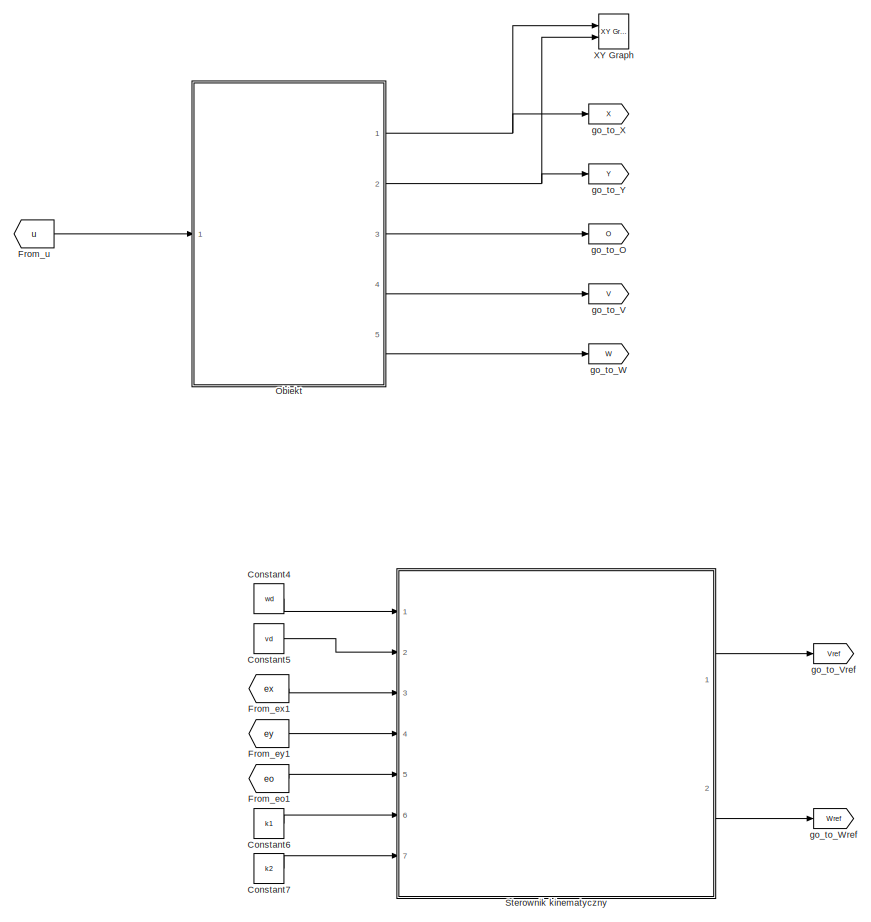
[diagram: root canvas - part 1/3, middle left region]
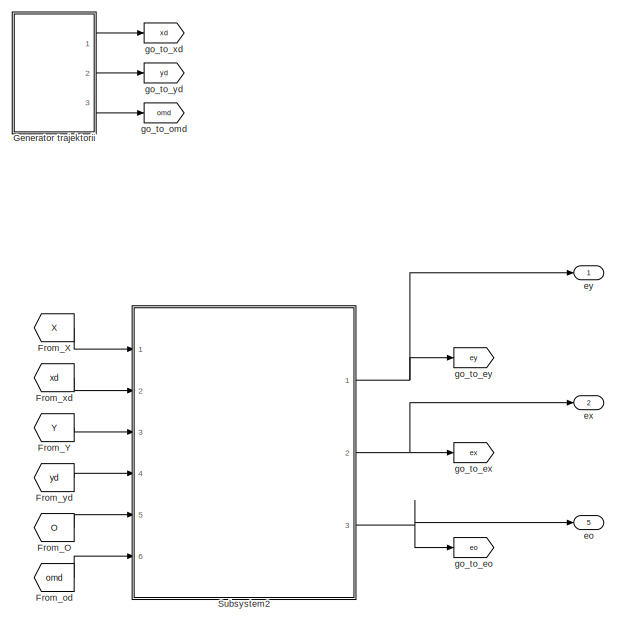
[diagram: root canvas - part 2/3, middle right region]
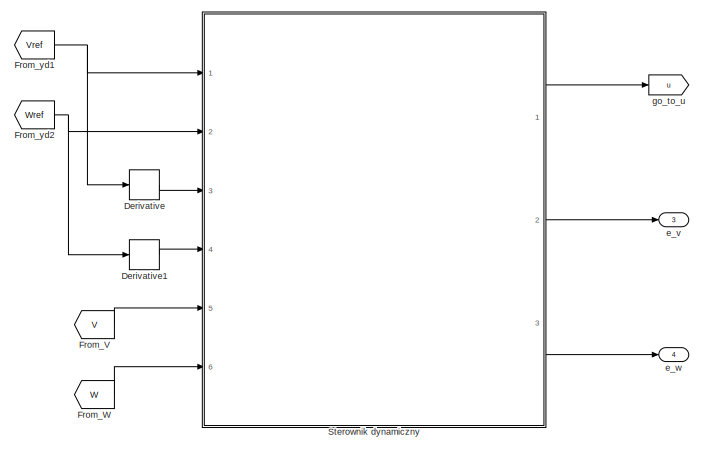
[diagram: root canvas - part 3/3, bottom center region]
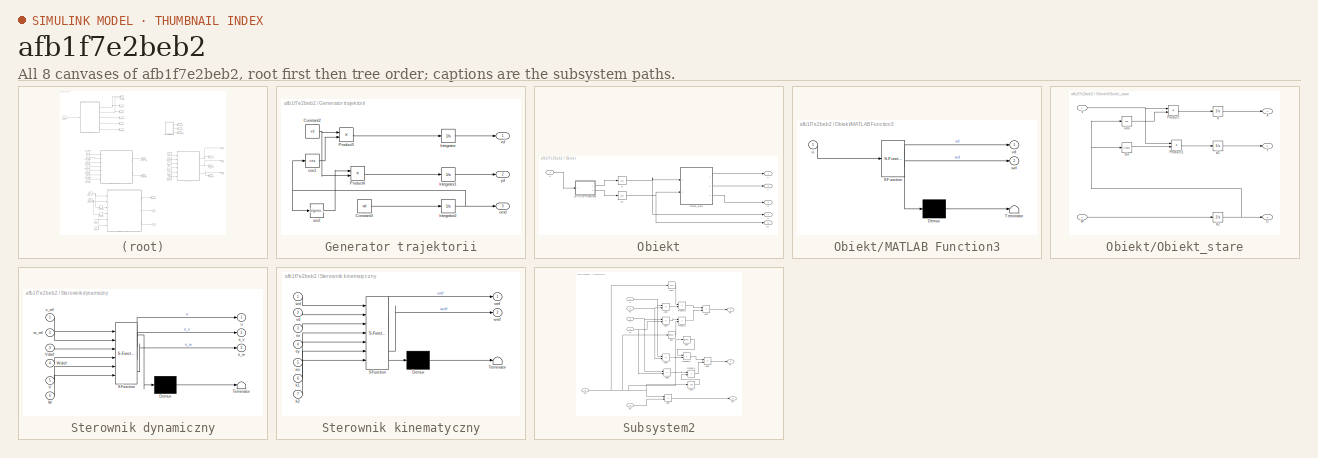
[diagram: thumbnail index - all 8 canvases of the model, root first then tree order]
MODEL slx_afb1f7e2beb2
KIND model
CONFIG AbsTol = auto
CONFIG EnableMultiTasking = off
CONFIG FixedStep = auto
CONFIG MaxStep = auto
CONFIG MinStep = auto
CONFIG RelTol = 1e-2
CONFIG SampleTimeConstraint = Unconstrained
CONFIG Solver = ode113
CONFIG SolverName = ode113
CONFIG StartTime = 0.0
CONFIG StopTime = 10
BLOCK [Constant] Constant4
  Value = wd
BLOCK [Constant] Constant5
  Value = vd
BLOCK [Constant] Constant6
  Value = k1
BLOCK [Constant] Constant7
  Value = k2
BLOCK [Derivative] Derivative
BLOCK [Derivative] Derivative1
BLOCK [From] From_O
  GotoTag = O
BLOCK [From] From_V
  GotoTag = V
BLOCK [From] From_W
  GotoTag = W
BLOCK [From] From_X
  GotoTag = X
BLOCK [From] From_Y
  GotoTag = Y
BLOCK [From] From_eo1
  GotoTag = eo
BLOCK [From] From_ex1
  GotoTag = ex
BLOCK [From] From_ey1
  GotoTag = ey
BLOCK [From] From_od
  GotoTag = omd
BLOCK [From] From_u
  GotoTag = u
BLOCK [From] From_xd
  GotoTag = xd
BLOCK [From] From_yd
  GotoTag = yd
BLOCK [From] From_yd1
  GotoTag = Vref
BLOCK [From] From_yd2
  GotoTag = Wref
BLOCK [SubSystem] Generator trajektorii
  Ports = [0, 3]
  RequestExecContextInheritance = off
BLOCK [Constant] Generator trajektorii/Constant2
  Value = vd
BLOCK [Constant] Generator trajektorii/Constant3
  Value = wd
BLOCK [Integrator] Generator trajektorii/Integrator
  Ports = [1, 1]
BLOCK [Integrator] Generator trajektorii/Integrator1
  InitialCondition = -R
  Ports = [1, 1]
BLOCK [Integrator] Generator trajektorii/Integrator2
  Ports = [1, 1]
BLOCK [Product] Generator trajektorii/Product3
  Ports = [2, 1]
BLOCK [Product] Generator trajektorii/Product4
  Ports = [2, 1]
BLOCK [Trigonometry] Generator trajektorii/cos1
  Operator = cos
  Ports = [1, 1]
BLOCK [Outport] Generator trajektorii/omd
  Port = 3
BLOCK [Trigonometry] Generator trajektorii/sin2
  Ports = [1, 1]
BLOCK [Outport] Generator trajektorii/xd
BLOCK [Outport] Generator trajektorii/yd
  Port = 2
BLOCK [SubSystem] Obiekt
  Ports = [1, 5]
  RequestExecContextInheritance = off
BLOCK [SubSystem] Obiekt/MATLAB Function3
  ErrorFcn = Stateflow.Translate.translate
  PermitHierarchicalResolution = ExplicitOnly
  Ports = [1, 2]
  RequestExecContextInheritance = off
  SFBlockType = MATLAB Function
  TreatAsAtomicUnit = on
BLOCK [Demux] Obiekt/MATLAB Function3/ Demux 
  Outputs = 1
  Ports = [1, 1]
BLOCK [S-Function] Obiekt/MATLAB Function3/ SFunction 
  EnableBusSupport = on
  FunctionName = sf_sfun
  Parameters = B,M_1
  PortCounts = [1 3]
  Ports = [1, 3]
  SFcnIsStateOwnerBlock = off
  SFunctionDeploymentMode = off
  Tag = Stateflow S-Function 4
BLOCK [Terminator] Obiekt/MATLAB Function3/ Terminator 
BLOCK [Inport] Obiekt/MATLAB Function3/u
BLOCK [Outport] Obiekt/MATLAB Function3/vd
BLOCK [Outport] Obiekt/MATLAB Function3/wd
  Port = 2
BLOCK [Outport] Obiekt/O
  Port = 3
BLOCK [SubSystem] Obiekt/Obiekt_stare
  Ports = [2, 3]
  RequestExecContextInheritance = off
BLOCK [Trigonometry] Obiekt/Obiekt_stare/Cos
  Operator = cos
  Ports = [1, 1]
BLOCK [Outport] Obiekt/Obiekt_stare/O
  Port = 3
BLOCK [Product] Obiekt/Obiekt_stare/Product
  Ports = [2, 1]
BLOCK [Product] Obiekt/Obiekt_stare/Product1
  Ports = [2, 1]
BLOCK [Trigonometry] Obiekt/Obiekt_stare/Sin
  Ports = [1, 1]
BLOCK [Inport] Obiekt/Obiekt_stare/V
BLOCK [Inport] Obiekt/Obiekt_stare/W
  Port = 2
BLOCK [Outport] Obiekt/Obiekt_stare/X
BLOCK [Outport] Obiekt/Obiekt_stare/Y
  Port = 2
BLOCK [Integrator] Obiekt/Obiekt_stare/d
  InitialCondition = R
  Ports = [1, 1]
BLOCK [Integrator] Obiekt/Obiekt_stare/d1
  InitialCondition = R
  Ports = [1, 1]
BLOCK [Integrator] Obiekt/Obiekt_stare/d2
  InitialCondition = 1
  Ports = [1, 1]
BLOCK [Outport] Obiekt/V
  Port = 4
BLOCK [Outport] Obiekt/W
  Port = 5
BLOCK [Outport] Obiekt/X
BLOCK [Outport] Obiekt/Y
  Port = 2
BLOCK [Integrator] Obiekt/d
  Ports = [1, 1]
BLOCK [Integrator] Obiekt/d1
  Ports = [1, 1]
BLOCK [Inport] Obiekt/u
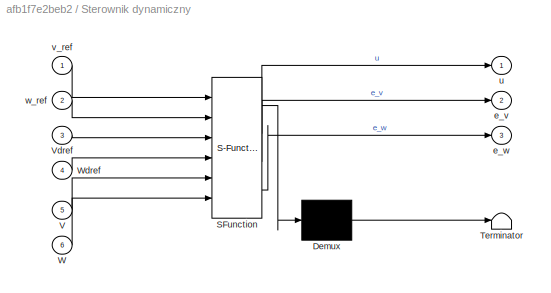
BLOCK [SubSystem] Sterownik dynamiczny
  ErrorFcn = Stateflow.Translate.translate
  PermitHierarchicalResolution = ExplicitOnly
  Ports = [6, 3]
  RequestExecContextInheritance = off
  SFBlockType = MATLAB Function
  TreatAsAtomicUnit = on
BLOCK [Demux] Sterownik dynamiczny/ Demux 
  Outputs = 1
  Ports = [1, 1]
BLOCK [S-Function] Sterownik dynamiczny/ SFunction 
  EnableBusSupport = on
  FunctionName = sf_sfun
  Parameters = B_1,M,kd
  PortCounts = [6 4]
  Ports = [6, 4]
  SFcnIsStateOwnerBlock = off
  SFunctionDeploymentMode = off
  Tag = Stateflow S-Function 3
BLOCK [Terminator] Sterownik dynamiczny/ Terminator 
BLOCK [Inport] Sterownik dynamiczny/V
  Port = 5
BLOCK [Inport] Sterownik dynamiczny/Vdref
  Port = 3
BLOCK [Inport] Sterownik dynamiczny/W
  Port = 6
BLOCK [Inport] Sterownik dynamiczny/Wdref
  Port = 4
BLOCK [Outport] Sterownik dynamiczny/e_v
  Port = 2
BLOCK [Outport] Sterownik dynamiczny/e_w
  Port = 3
BLOCK [Outport] Sterownik dynamiczny/u
BLOCK [Inport] Sterownik dynamiczny/v_ref
BLOCK [Inport] Sterownik dynamiczny/w_ref
  Port = 2
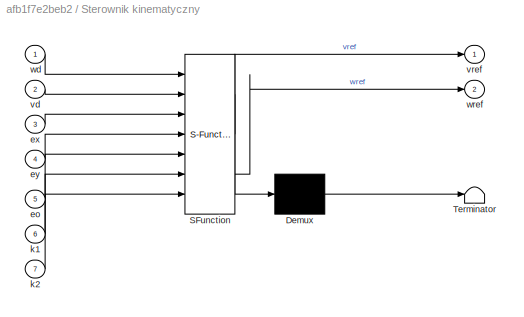
BLOCK [SubSystem] Sterownik kinematyczny
  ErrorFcn = Stateflow.Translate.translate
  PermitHierarchicalResolution = ExplicitOnly
  Ports = [7, 2]
  RequestExecContextInheritance = off
  SFBlockType = MATLAB Function
  TreatAsAtomicUnit = on
BLOCK [Demux] Sterownik kinematyczny/ Demux 
  Outputs = 1
  Ports = [1, 1]
BLOCK [S-Function] Sterownik kinematyczny/ SFunction 
  EnableBusSupport = on
  FunctionName = sf_sfun
  PortCounts = [7 3]
  Ports = [7, 3]
  SFcnIsStateOwnerBlock = off
  SFunctionDeploymentMode = off
  Tag = Stateflow S-Function 2
BLOCK [Terminator] Sterownik kinematyczny/ Terminator 
BLOCK [Inport] Sterownik kinematyczny/eo
  Port = 5
BLOCK [Inport] Sterownik kinematyczny/ex
  Port = 3
BLOCK [Inport] Sterownik kinematyczny/ey
  Port = 4
BLOCK [Inport] Sterownik kinematyczny/k1
  Port = 6
BLOCK [Inport] Sterownik kinematyczny/k2
  Port = 7
BLOCK [Inport] Sterownik kinematyczny/vd
  Port = 2
BLOCK [Outport] Sterownik kinematyczny/vref
BLOCK [Inport] Sterownik kinematyczny/wd
BLOCK [Outport] Sterownik kinematyczny/wref
  Port = 2
BLOCK [SubSystem] Subsystem2
  Ports = [6, 3]
  RequestExecContextInheritance = off
BLOCK [Sum] Subsystem2/Add1
  IconShape = rectangular
  Inputs = +-
  Ports = [2, 1]
BLOCK [Sum] Subsystem2/Add2
  IconShape = rectangular
  Ports = [2, 1]
BLOCK [Sum] Subsystem2/Add3
  IconShape = rectangular
  Inputs = +-
  Ports = [2, 1]
BLOCK [Sum] Subsystem2/Add4
  IconShape = rectangular
  Inputs = +-
  Ports = [2, 1]
BLOCK [Sum] Subsystem2/Add5
  IconShape = rectangular
  Inputs = -+
  Ports = [2, 1]
BLOCK [Sum] Subsystem2/Add6
  IconShape = rectangular
  Inputs = +-
  Ports = [2, 1]
BLOCK [Sum] Subsystem2/Add7
  IconShape = rectangular
  Inputs = +-
  Ports = [2, 1]
BLOCK [Inport] Subsystem2/O
  Port = 5
BLOCK [Product] Subsystem2/Product1
  Ports = [2, 1]
BLOCK [Product] Subsystem2/Product2
  Ports = [2, 1]
BLOCK [Product] Subsystem2/Product3
  Ports = [2, 1]
BLOCK [Product] Subsystem2/Product4
  Ports = [2, 1]
BLOCK [Inport] Subsystem2/X
BLOCK [Inport] Subsystem2/Y
  Port = 3
BLOCK [Trigonometry] Subsystem2/cos2
  Operator = cos
  Ports = [1, 1]
BLOCK [Trigonometry] Subsystem2/cos3
  Operator = cos
  Ports = [1, 1]
BLOCK [Outport] Subsystem2/eo
  Port = 3
BLOCK [Outport] Subsystem2/ex
  Port = 2
BLOCK [Outport] Subsystem2/ey
BLOCK [Inport] Subsystem2/od
  Port = 6
BLOCK [Trigonometry] Subsystem2/sin2
  Ports = [1, 1]
BLOCK [Trigonometry] Subsystem2/sin3
  Ports = [1, 1]
BLOCK [Inport] Subsystem2/xd
  Port = 2
BLOCK [Inport] Subsystem2/yd
  Port = 4
BLOCK [Reference] XY Graph  REF=simulink/Sinks/XY Graph
  Ports = [2]
  SourceBlock = simulink/Sinks/XY Graph
  SourceProductBaseCode = SL
  SourceType = XY scope.
BLOCK [Outport] e_v
  Port = 3
BLOCK [Outport] e_w
  Port = 4
BLOCK [Outport] eo
  Port = 5
BLOCK [Outport] ex
  Port = 2
BLOCK [Outport] ey
BLOCK [Goto] go_to_O
  GotoTag = O
BLOCK [Goto] go_to_V
  GotoTag = V
BLOCK [Goto] go_to_Vref
  GotoTag = Vref
BLOCK [Goto] go_to_W
  GotoTag = W
BLOCK [Goto] go_to_Wref
  GotoTag = Wref
BLOCK [Goto] go_to_X
  GotoTag = X
BLOCK [Goto] go_to_Y
  GotoTag = Y
BLOCK [Goto] go_to_eo
  GotoTag = eo
BLOCK [Goto] go_to_ex
  GotoTag = ex
BLOCK [Goto] go_to_ey
  GotoTag = ey
BLOCK [Goto] go_to_omd
  GotoTag = omd
BLOCK [Goto] go_to_u
  GotoTag = u
BLOCK [Goto] go_to_xd
  GotoTag = xd
BLOCK [Goto] go_to_yd
  GotoTag = yd
LINE Constant4:1 -> Sterownik kinematyczny:1
LINE Constant5:1 -> Sterownik kinematyczny:2
LINE Constant6:1 -> Sterownik kinematyczny:6
LINE Constant7:1 -> Sterownik kinematyczny:7
LINE Derivative1:1 -> Sterownik dynamiczny:4
LINE Derivative:1 -> Sterownik dynamiczny:3
LINE From_O:1 -> Subsystem2:5
LINE From_V:1 -> Sterownik dynamiczny:5
LINE From_W:1 -> Sterownik dynamiczny:6
LINE From_X:1 -> Subsystem2:1
LINE From_Y:1 -> Subsystem2:3
LINE From_eo1:1 -> Sterownik kinematyczny:5
LINE From_ex1:1 -> Sterownik kinematyczny:3
LINE From_ey1:1 -> Sterownik kinematyczny:4
LINE From_od:1 -> Subsystem2:6
LINE From_u:1 -> Obiekt:1
LINE From_xd:1 -> Subsystem2:2
NET From_yd1:1 -> Derivative:1, Sterownik dynamiczny:1
NET From_yd2:1 -> Derivative1:1, Sterownik dynamiczny:2
LINE From_yd:1 -> Subsystem2:4
NET Generator trajektorii/Constant2:1 -> Generator trajektorii/Product3:1, Generator trajektorii/Product4:2
LINE Generator trajektorii/Constant3:1 -> Generator trajektorii/Integrator2:1
LINE Generator trajektorii/Integrator1:1 -> Generator trajektorii/yd:1
NET Generator trajektorii/Integrator2:1 -> Generator trajektorii/cos1:1, Generator trajektorii/omd:1, Generator trajektorii/sin2:1
LINE Generator trajektorii/Integrator:1 -> Generator trajektorii/xd:1
LINE Generator trajektorii/Product3:1 -> Generator trajektorii/Integrator:1
LINE Generator trajektorii/Product4:1 -> Generator trajektorii/Integrator1:1
LINE Generator trajektorii/cos1:1 -> Generator trajektorii/Product3:2
LINE Generator trajektorii/sin2:1 -> Generator trajektorii/Product4:1
LINE Generator trajektorii:1 -> go_to_xd:1
LINE Generator trajektorii:2 -> go_to_yd:1
LINE Generator trajektorii:3 -> go_to_omd:1
LINE Obiekt/MATLAB Function3:1 -> Obiekt/d:1
LINE Obiekt/MATLAB Function3:2 -> Obiekt/d1:1
LINE Obiekt/Obiekt_stare/Cos:1 -> Obiekt/Obiekt_stare/Product:2
LINE Obiekt/Obiekt_stare/Product1:1 -> Obiekt/Obiekt_stare/d1:1
LINE Obiekt/Obiekt_stare/Product:1 -> Obiekt/Obiekt_stare/d:1
LINE Obiekt/Obiekt_stare/Sin:1 -> Obiekt/Obiekt_stare/Product1:2
NET Obiekt/Obiekt_stare/V:1 -> Obiekt/Obiekt_stare/Product1:1, Obiekt/Obiekt_stare/Product:1
LINE Obiekt/Obiekt_stare/W:1 -> Obiekt/Obiekt_stare/d2:1
LINE Obiekt/Obiekt_stare/d1:1 -> Obiekt/Obiekt_stare/Y:1
NET Obiekt/Obiekt_stare/d2:1 -> Obiekt/Obiekt_stare/Cos:1, Obiekt/Obiekt_stare/O:1, Obiekt/Obiekt_stare/Sin:1
LINE Obiekt/Obiekt_stare/d:1 -> Obiekt/Obiekt_stare/X:1
LINE Obiekt/Obiekt_stare:1 -> Obiekt/X:1
LINE Obiekt/Obiekt_stare:2 -> Obiekt/Y:1
LINE Obiekt/Obiekt_stare:3 -> Obiekt/O:1
NET Obiekt/d1:1 -> Obiekt/Obiekt_stare:2, Obiekt/W:1
NET Obiekt/d:1 -> Obiekt/Obiekt_stare:1, Obiekt/V:1
LINE Obiekt/u:1 -> Obiekt/MATLAB Function3:1
NET Obiekt:1 -> XY Graph:1, go_to_X:1
NET Obiekt:2 -> XY Graph:2, go_to_Y:1
LINE Obiekt:3 -> go_to_O:1
LINE Obiekt:4 -> go_to_V:1
LINE Obiekt:5 -> go_to_W:1
LINE Sterownik dynamiczny:1 -> go_to_u:1
LINE Sterownik dynamiczny:2 -> e_v:1
LINE Sterownik dynamiczny:3 -> e_w:1
LINE Sterownik kinematyczny:1 -> go_to_Vref:1
LINE Sterownik kinematyczny:2 -> go_to_Wref:1
LINE Subsystem2/Add1:1 -> Subsystem2/Product1:2
LINE Subsystem2/Add2:1 -> Subsystem2/ex:1
LINE Subsystem2/Add3:1 -> Subsystem2/Product2:1
LINE Subsystem2/Add4:1 -> Subsystem2/Product3:2
LINE Subsystem2/Add5:1 -> Subsystem2/ey:1
LINE Subsystem2/Add6:1 -> Subsystem2/Product4:1
LINE Subsystem2/Add7:1 -> Subsystem2/eo:1
NET Subsystem2/O:1 -> Subsystem2/Add7:1, Subsystem2/cos2:1, Subsystem2/cos3:1, Subsystem2/sin2:1, Subsystem2/sin3:1
LINE Subsystem2/Product1:1 -> Subsystem2/Add2:1
LINE Subsystem2/Product2:1 -> Subsystem2/Add2:2
LINE Subsystem2/Product3:1 -> Subsystem2/Add5:1
LINE Subsystem2/Product4:1 -> Subsystem2/Add5:2
NET Subsystem2/X:1 -> Subsystem2/Add1:1, Subsystem2/Add4:1
NET Subsystem2/Y:1 -> Subsystem2/Add3:1, Subsystem2/Add6:1
LINE Subsystem2/cos2:1 -> Subsystem2/Product1:1
LINE Subsystem2/cos3:1 -> Subsystem2/Product4:2
LINE Subsystem2/od:1 -> Subsystem2/Add7:2
LINE Subsystem2/sin2:1 -> Subsystem2/Product2:2
LINE Subsystem2/sin3:1 -> Subsystem2/Product3:1
NET Subsystem2/xd:1 -> Subsystem2/Add1:2, Subsystem2/Add4:2
NET Subsystem2/yd:1 -> Subsystem2/Add3:2, Subsystem2/Add6:2
NET Subsystem2:1 -> ey:1, go_to_ey:1
NET Subsystem2:2 -> ex:1, go_to_ex:1
NET Subsystem2:3 -> eo:1, go_to_eo:1
note: NET lines group one-source signal fan-out (src -> all destinations, sorted); 1:1 wires keep LINE
CHART Sterownik kinematyczny states=1 transitions=1
  STATE_LABEL 'eML_blk_kernel()'
  STATE_LABEL 'SCRIPT:\nfunction [vref, wref] = fcn(wd,vd,ex,ey,eo,k1,k2)\n\nvref = vd*cos(eo)-k1*ex\nwref = wd-vd*ey-k2*eo\n'
CHART Sterownik dynamiczny states=1 transitions=1
  STATE_LABEL 'eML_blk_kernel()'
  STATE_LABEL 'SCRIPT:\nfunction [u,e_v, e_w] = fcn(v_ref,w_ref, Vdref, Wdref, V, W, B_1, M, kd)\n\nndref = [Vdref; Wdref];\ne_2 = [V;W] - [v_ref;w_ref];\n\ne_v = V - v_ref;\ne_w = W - w_ref;\n\nu = B_1*M*(ndref-(kd*e_2));\n\n\n\n'
CHART Obiekt/MATLAB Function3 states=1 transitions=1
  STATE_LABEL 'eML_blk_kernel()'
  STATE_LABEL 'SCRIPT:\nfunction [vd,wd] = fcn(u, M_1, B)\n\nnd = M_1*B*u;\n\na = nd(1,1);\nb = nd(2,1);\n\n\nvd = a;\nwd = b;\n'
CHART  states=0 transitions=0
CHART  states=0 transitions=0
CHART  states=0 transitions=0
